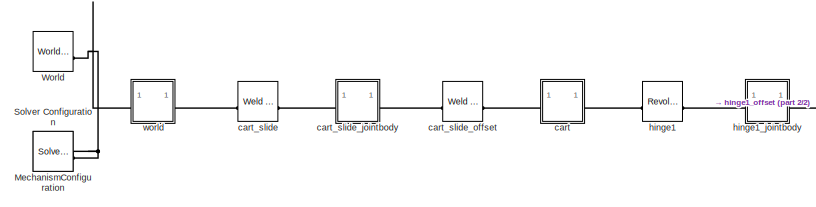
[diagram: root canvas - part 1/2, left side, full height]
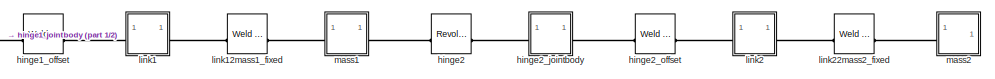
[diagram: root canvas - part 2/2, middle right region]
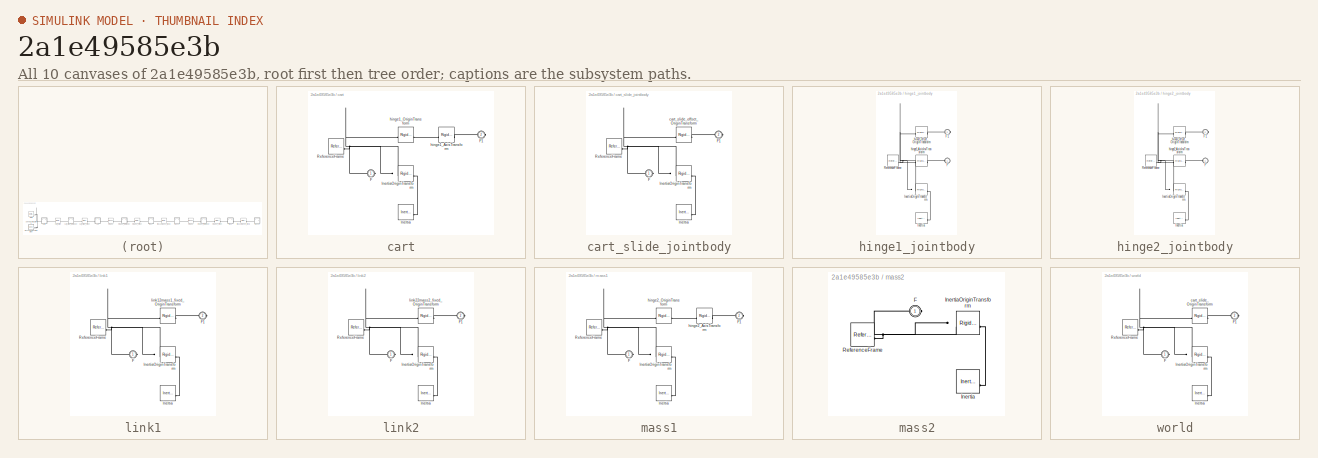
[diagram: thumbnail index - all 10 canvases of the model, root first then tree order]
MODEL slx_2a1e49585e3b
KIND model
CONFIG AbsTol = auto
CONFIG EnableMultiTasking = off
CONFIG FixedStep = auto
CONFIG MaxStep = auto
CONFIG MinStep = auto
CONFIG RelTol = 1e-3
CONFIG SampleTimeConstraint = Unconstrained
CONFIG SolverName = FixedStepDiscrete
CONFIG StartTime = 0.0
CONFIG StopTime = 10.0
BLOCK [Reference] MechanismConfiguration  REF=sm_lib/Utilities/Mechanism
Configuration
  SourceBlock = sm_lib/Utilities/Mechanism\nConfiguration
  SourceType = Mechanism\nConfiguration
BLOCK [Reference] Solver Configuration  REF=nesl_utility/Solver
Configuration
  SourceBlock = nesl_utility/Solver\nConfiguration
  SourceType = Solver\nConfiguration
BLOCK [Reference] World  REF=sm_lib/Frames and
Transforms/World Frame
  SourceBlock = sm_lib/Frames and\nTransforms/World Frame
  SourceType = World Frame
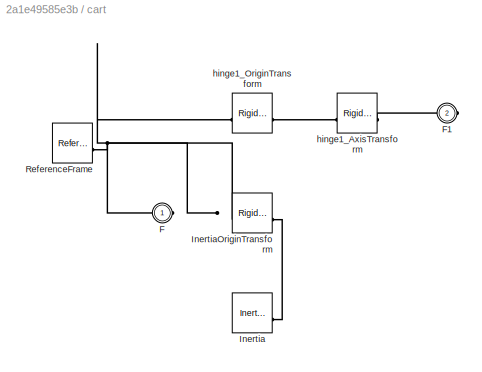
BLOCK [SubSystem] cart
BLOCK [PMIOPort] cart/F
  Side = Left
BLOCK [PMIOPort] cart/F1
  Port = 2
  Side = Right
BLOCK [Reference] cart/Inertia  REF=sm_lib/Body Elements/Inertia
  SourceBlock = sm_lib/Body Elements/Inertia
  SourceType = Inertia
BLOCK [Reference] cart/InertiaOriginTransform  REF=sm_lib/Frames and
Transforms/Rigid
Transform
  SourceBlock = sm_lib/Frames and\nTransforms/Rigid\nTransform
  SourceType = Rigid\nTransform
BLOCK [Reference] cart/ReferenceFrame  REF=sm_lib/Frames and
Transforms/Reference
Frame
  SourceBlock = sm_lib/Frames and\nTransforms/Reference\nFrame
  SourceType = Reference\nFrame
BLOCK [Reference] cart/hinge1_AxisTransform  REF=sm_lib/Frames and
Transforms/Rigid
Transform
  SourceBlock = sm_lib/Frames and\nTransforms/Rigid\nTransform
  SourceType = Rigid\nTransform
BLOCK [Reference] cart/hinge1_OriginTransform  REF=sm_lib/Frames and
Transforms/Rigid
Transform
  SourceBlock = sm_lib/Frames and\nTransforms/Rigid\nTransform
  SourceType = Rigid\nTransform
BLOCK [Reference] cart_slide  REF=sm_lib/Joints/Weld Joint
  SourceBlock = sm_lib/Joints/Weld Joint
  SourceType = Weld Joint
BLOCK [SubSystem] cart_slide_jointbody
BLOCK [PMIOPort] cart_slide_jointbody/F
  Side = Left
BLOCK [PMIOPort] cart_slide_jointbody/F1
  Port = 2
  Side = Right
BLOCK [Reference] cart_slide_jointbody/Inertia  REF=sm_lib/Body Elements/Inertia
  SourceBlock = sm_lib/Body Elements/Inertia
  SourceType = Inertia
BLOCK [Reference] cart_slide_jointbody/InertiaOriginTransform  REF=sm_lib/Frames and
Transforms/Rigid
Transform
  SourceBlock = sm_lib/Frames and\nTransforms/Rigid\nTransform
  SourceType = Rigid\nTransform
BLOCK [Reference] cart_slide_jointbody/ReferenceFrame  REF=sm_lib/Frames and
Transforms/Reference
Frame
  SourceBlock = sm_lib/Frames and\nTransforms/Reference\nFrame
  SourceType = Reference\nFrame
BLOCK [Reference] cart_slide_jointbody/cart_slide_offset_OriginTransform  REF=sm_lib/Frames and
Transforms/Rigid
Transform
  SourceBlock = sm_lib/Frames and\nTransforms/Rigid\nTransform
  SourceType = Rigid\nTransform
BLOCK [Reference] cart_slide_offset  REF=sm_lib/Joints/Weld Joint
  SourceBlock = sm_lib/Joints/Weld Joint
  SourceType = Weld Joint
BLOCK [Reference] hinge1  REF=sm_lib/Joints/Revolute Joint
  SourceBlock = sm_lib/Joints/Revolute Joint
  SourceType = Revolute Joint
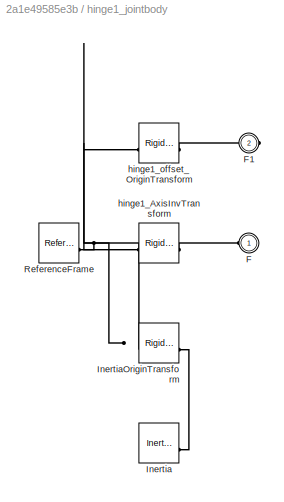
BLOCK [SubSystem] hinge1_jointbody
BLOCK [PMIOPort] hinge1_jointbody/F
  Side = Left
BLOCK [PMIOPort] hinge1_jointbody/F1
  Port = 2
  Side = Right
BLOCK [Reference] hinge1_jointbody/Inertia  REF=sm_lib/Body Elements/Inertia
  SourceBlock = sm_lib/Body Elements/Inertia
  SourceType = Inertia
BLOCK [Reference] hinge1_jointbody/InertiaOriginTransform  REF=sm_lib/Frames and
Transforms/Rigid
Transform
  SourceBlock = sm_lib/Frames and\nTransforms/Rigid\nTransform
  SourceType = Rigid\nTransform
BLOCK [Reference] hinge1_jointbody/ReferenceFrame  REF=sm_lib/Frames and
Transforms/Reference
Frame
  SourceBlock = sm_lib/Frames and\nTransforms/Reference\nFrame
  SourceType = Reference\nFrame
BLOCK [Reference] hinge1_jointbody/hinge1_AxisInvTransform  REF=sm_lib/Frames and
Transforms/Rigid
Transform
  SourceBlock = sm_lib/Frames and\nTransforms/Rigid\nTransform
  SourceType = Rigid\nTransform
BLOCK [Reference] hinge1_jointbody/hinge1_offset_OriginTransform  REF=sm_lib/Frames and
Transforms/Rigid
Transform
  SourceBlock = sm_lib/Frames and\nTransforms/Rigid\nTransform
  SourceType = Rigid\nTransform
BLOCK [Reference] hinge1_offset  REF=sm_lib/Joints/Weld Joint
  SourceBlock = sm_lib/Joints/Weld Joint
  SourceType = Weld Joint
BLOCK [Reference] hinge2  REF=sm_lib/Joints/Revolute Joint
  SourceBlock = sm_lib/Joints/Revolute Joint
  SourceType = Revolute Joint
BLOCK [SubSystem] hinge2_jointbody
BLOCK [PMIOPort] hinge2_jointbody/F
  Side = Left
BLOCK [PMIOPort] hinge2_jointbody/F1
  Port = 2
  Side = Right
BLOCK [Reference] hinge2_jointbody/Inertia  REF=sm_lib/Body Elements/Inertia
  SourceBlock = sm_lib/Body Elements/Inertia
  SourceType = Inertia
BLOCK [Reference] hinge2_jointbody/InertiaOriginTransform  REF=sm_lib/Frames and
Transforms/Rigid
Transform
  SourceBlock = sm_lib/Frames and\nTransforms/Rigid\nTransform
  SourceType = Rigid\nTransform
BLOCK [Reference] hinge2_jointbody/ReferenceFrame  REF=sm_lib/Frames and
Transforms/Reference
Frame
  SourceBlock = sm_lib/Frames and\nTransforms/Reference\nFrame
  SourceType = Reference\nFrame
BLOCK [Reference] hinge2_jointbody/hinge2_AxisInvTransform  REF=sm_lib/Frames and
Transforms/Rigid
Transform
  SourceBlock = sm_lib/Frames and\nTransforms/Rigid\nTransform
  SourceType = Rigid\nTransform
BLOCK [Reference] hinge2_jointbody/hinge2_offset_OriginTransform  REF=sm_lib/Frames and
Transforms/Rigid
Transform
  SourceBlock = sm_lib/Frames and\nTransforms/Rigid\nTransform
  SourceType = Rigid\nTransform
BLOCK [Reference] hinge2_offset  REF=sm_lib/Joints/Weld Joint
  SourceBlock = sm_lib/Joints/Weld Joint
  SourceType = Weld Joint
BLOCK [SubSystem] link1
BLOCK [PMIOPort] link1/F
  Side = Left
BLOCK [PMIOPort] link1/F1
  Port = 2
  Side = Right
BLOCK [Reference] link1/Inertia  REF=sm_lib/Body Elements/Inertia
  SourceBlock = sm_lib/Body Elements/Inertia
  SourceType = Inertia
BLOCK [Reference] link1/InertiaOriginTransform  REF=sm_lib/Frames and
Transforms/Rigid
Transform
  SourceBlock = sm_lib/Frames and\nTransforms/Rigid\nTransform
  SourceType = Rigid\nTransform
BLOCK [Reference] link1/ReferenceFrame  REF=sm_lib/Frames and
Transforms/Reference
Frame
  SourceBlock = sm_lib/Frames and\nTransforms/Reference\nFrame
  SourceType = Reference\nFrame
BLOCK [Reference] link1/link12mass1_fixed_OriginTransform  REF=sm_lib/Frames and
Transforms/Rigid
Transform
  SourceBlock = sm_lib/Frames and\nTransforms/Rigid\nTransform
  SourceType = Rigid\nTransform
BLOCK [Reference] link12mass1_fixed  REF=sm_lib/Joints/Weld Joint
  SourceBlock = sm_lib/Joints/Weld Joint
  SourceType = Weld Joint
BLOCK [SubSystem] link2
BLOCK [PMIOPort] link2/F
  Side = Left
BLOCK [PMIOPort] link2/F1
  Port = 2
  Side = Right
BLOCK [Reference] link2/Inertia  REF=sm_lib/Body Elements/Inertia
  SourceBlock = sm_lib/Body Elements/Inertia
  SourceType = Inertia
BLOCK [Reference] link2/InertiaOriginTransform  REF=sm_lib/Frames and
Transforms/Rigid
Transform
  SourceBlock = sm_lib/Frames and\nTransforms/Rigid\nTransform
  SourceType = Rigid\nTransform
BLOCK [Reference] link2/ReferenceFrame  REF=sm_lib/Frames and
Transforms/Reference
Frame
  SourceBlock = sm_lib/Frames and\nTransforms/Reference\nFrame
  SourceType = Reference\nFrame
BLOCK [Reference] link2/link22mass2_fixed_OriginTransform  REF=sm_lib/Frames and
Transforms/Rigid
Transform
  SourceBlock = sm_lib/Frames and\nTransforms/Rigid\nTransform
  SourceType = Rigid\nTransform
BLOCK [Reference] link22mass2_fixed  REF=sm_lib/Joints/Weld Joint
  SourceBlock = sm_lib/Joints/Weld Joint
  SourceType = Weld Joint
BLOCK [SubSystem] mass1
BLOCK [PMIOPort] mass1/F
  Side = Left
BLOCK [PMIOPort] mass1/F1
  Port = 2
  Side = Right
BLOCK [Reference] mass1/Inertia  REF=sm_lib/Body Elements/Inertia
  SourceBlock = sm_lib/Body Elements/Inertia
  SourceType = Inertia
BLOCK [Reference] mass1/InertiaOriginTransform  REF=sm_lib/Frames and
Transforms/Rigid
Transform
  SourceBlock = sm_lib/Frames and\nTransforms/Rigid\nTransform
  SourceType = Rigid\nTransform
BLOCK [Reference] mass1/ReferenceFrame  REF=sm_lib/Frames and
Transforms/Reference
Frame
  SourceBlock = sm_lib/Frames and\nTransforms/Reference\nFrame
  SourceType = Reference\nFrame
BLOCK [Reference] mass1/hinge2_AxisTransform  REF=sm_lib/Frames and
Transforms/Rigid
Transform
  SourceBlock = sm_lib/Frames and\nTransforms/Rigid\nTransform
  SourceType = Rigid\nTransform
BLOCK [Reference] mass1/hinge2_OriginTransform  REF=sm_lib/Frames and
Transforms/Rigid
Transform
  SourceBlock = sm_lib/Frames and\nTransforms/Rigid\nTransform
  SourceType = Rigid\nTransform
BLOCK [SubSystem] mass2
BLOCK [PMIOPort] mass2/F
  Side = Left
BLOCK [Reference] mass2/Inertia  REF=sm_lib/Body Elements/Inertia
  SourceBlock = sm_lib/Body Elements/Inertia
  SourceType = Inertia
BLOCK [Reference] mass2/InertiaOriginTransform  REF=sm_lib/Frames and
Transforms/Rigid
Transform
  SourceBlock = sm_lib/Frames and\nTransforms/Rigid\nTransform
  SourceType = Rigid\nTransform
BLOCK [Reference] mass2/ReferenceFrame  REF=sm_lib/Frames and
Transforms/Reference
Frame
  SourceBlock = sm_lib/Frames and\nTransforms/Reference\nFrame
  SourceType = Reference\nFrame
BLOCK [SubSystem] world
BLOCK [PMIOPort] world/F
  Side = Left
BLOCK [PMIOPort] world/F1
  Port = 2
  Side = Right
BLOCK [Reference] world/Inertia  REF=sm_lib/Body Elements/Inertia
  SourceBlock = sm_lib/Body Elements/Inertia
  SourceType = Inertia
BLOCK [Reference] world/InertiaOriginTransform  REF=sm_lib/Frames and
Transforms/Rigid
Transform
  SourceBlock = sm_lib/Frames and\nTransforms/Rigid\nTransform
  SourceType = Rigid\nTransform
BLOCK [Reference] world/ReferenceFrame  REF=sm_lib/Frames and
Transforms/Reference
Frame
  SourceBlock = sm_lib/Frames and\nTransforms/Reference\nFrame
  SourceType = Reference\nFrame
BLOCK [Reference] world/cart_slide_OriginTransform  REF=sm_lib/Frames and
Transforms/Rigid
Transform
  SourceBlock = sm_lib/Frames and\nTransforms/Rigid\nTransform
  SourceType = Rigid\nTransform
PNET net1: MechanismConfiguration:RConn1 -- Solver Configuration:RConn1 -- World:RConn1 -- world:LConn1
PLINE cart/F1:RConn1 -- cart/hinge1_AxisTransform:RConn1
PNET net2: cart/F:RConn1 -- cart/InertiaOriginTransform:LConn1 -- cart/ReferenceFrame:RConn1 -- cart/hinge1_OriginTransform:LConn1
PLINE cart/Inertia:RConn1 -- cart/InertiaOriginTransform:RConn1
PLINE cart/hinge1_AxisTransform:LConn1 -- cart/hinge1_OriginTransform:RConn1
PLINE cart:LConn1 -- cart_slide_offset:RConn1
PLINE cart:RConn1 -- hinge1:LConn1
PLINE cart_slide:LConn1 -- world:RConn1
PLINE cart_slide:RConn1 -- cart_slide_jointbody:LConn1
PLINE cart_slide_jointbody/F1:RConn1 -- cart_slide_jointbody/cart_slide_offset_OriginTransform:RConn1
PNET net3: cart_slide_jointbody/F:RConn1 -- cart_slide_jointbody/InertiaOriginTransform:LConn1 -- cart_slide_jointbody/ReferenceFrame:RConn1 -- cart_slide_jointbody/cart_slide_offset_OriginTransform:LConn1
PLINE cart_slide_jointbody/Inertia:RConn1 -- cart_slide_jointbody/InertiaOriginTransform:RConn1
PLINE cart_slide_jointbody:RConn1 -- cart_slide_offset:LConn1
PLINE hinge1:RConn1 -- hinge1_jointbody:LConn1
PLINE hinge1_jointbody/F1:RConn1 -- hinge1_jointbody/hinge1_offset_OriginTransform:RConn1
PLINE hinge1_jointbody/F:RConn1 -- hinge1_jointbody/hinge1_AxisInvTransform:RConn1
PLINE hinge1_jointbody/Inertia:RConn1 -- hinge1_jointbody/InertiaOriginTransform:RConn1
PNET net4: hinge1_jointbody/InertiaOriginTransform:LConn1 -- hinge1_jointbody/ReferenceFrame:RConn1 -- hinge1_jointbody/hinge1_AxisInvTransform:LConn1 -- hinge1_jointbody/hinge1_offset_OriginTransform:LConn1
PLINE hinge1_jointbody:RConn1 -- hinge1_offset:LConn1
PLINE hinge1_offset:RConn1 -- link1:LConn1
PLINE hinge2:LConn1 -- mass1:RConn1
PLINE hinge2:RConn1 -- hinge2_jointbody:LConn1
PLINE hinge2_jointbody/F1:RConn1 -- hinge2_jointbody/hinge2_offset_OriginTransform:RConn1
PLINE hinge2_jointbody/F:RConn1 -- hinge2_jointbody/hinge2_AxisInvTransform:RConn1
PLINE hinge2_jointbody/Inertia:RConn1 -- hinge2_jointbody/InertiaOriginTransform:RConn1
PNET net5: hinge2_jointbody/InertiaOriginTransform:LConn1 -- hinge2_jointbody/ReferenceFrame:RConn1 -- hinge2_jointbody/hinge2_AxisInvTransform:LConn1 -- hinge2_jointbody/hinge2_offset_OriginTransform:LConn1
PLINE hinge2_jointbody:RConn1 -- hinge2_offset:LConn1
PLINE hinge2_offset:RConn1 -- link2:LConn1
PLINE link1/F1:RConn1 -- link1/link12mass1_fixed_OriginTransform:RConn1
PNET net6: link1/F:RConn1 -- link1/InertiaOriginTransform:LConn1 -- link1/ReferenceFrame:RConn1 -- link1/link12mass1_fixed_OriginTransform:LConn1
PLINE link1/Inertia:RConn1 -- link1/InertiaOriginTransform:RConn1
PLINE link12mass1_fixed:LConn1 -- link1:RConn1
PLINE link12mass1_fixed:RConn1 -- mass1:LConn1
PLINE link2/F1:RConn1 -- link2/link22mass2_fixed_OriginTransform:RConn1
PNET net7: link2/F:RConn1 -- link2/InertiaOriginTransform:LConn1 -- link2/ReferenceFrame:RConn1 -- link2/link22mass2_fixed_OriginTransform:LConn1
PLINE link2/Inertia:RConn1 -- link2/InertiaOriginTransform:RConn1
PLINE link22mass2_fixed:LConn1 -- link2:RConn1
PLINE link22mass2_fixed:RConn1 -- mass2:LConn1
PLINE mass1/F1:RConn1 -- mass1/hinge2_AxisTransform:RConn1
PNET net8: mass1/F:RConn1 -- mass1/InertiaOriginTransform:LConn1 -- mass1/ReferenceFrame:RConn1 -- mass1/hinge2_OriginTransform:LConn1
PLINE mass1/Inertia:RConn1 -- mass1/InertiaOriginTransform:RConn1
PLINE mass1/hinge2_AxisTransform:LConn1 -- mass1/hinge2_OriginTransform:RConn1
PNET net9: mass2/F:RConn1 -- mass2/InertiaOriginTransform:LConn1 -- mass2/ReferenceFrame:RConn1
PLINE mass2/Inertia:RConn1 -- mass2/InertiaOriginTransform:RConn1
PLINE world/F1:RConn1 -- world/cart_slide_OriginTransform:RConn1
PNET net10: world/F:RConn1 -- world/InertiaOriginTransform:LConn1 -- world/ReferenceFrame:RConn1 -- world/cart_slide_OriginTransform:LConn1
PLINE world/Inertia:RConn1 -- world/InertiaOriginTransform:RConn1
note: PNET lines group multi-terminal physical nets as a canonical sorted terminal list (undirected conserving connections); 2-terminal nets keep the pairwise PLINE form
